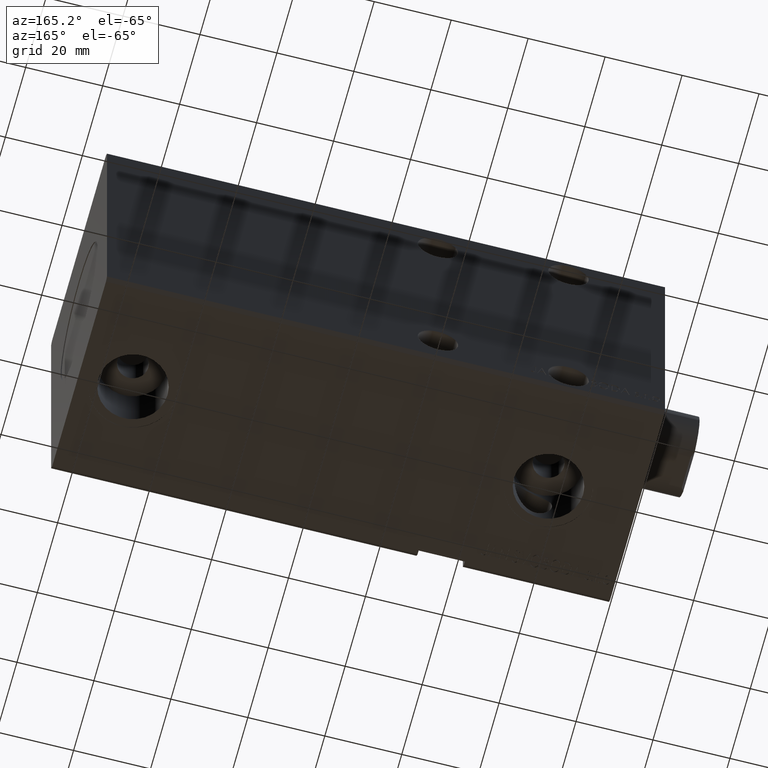
[diagram: clean part render]
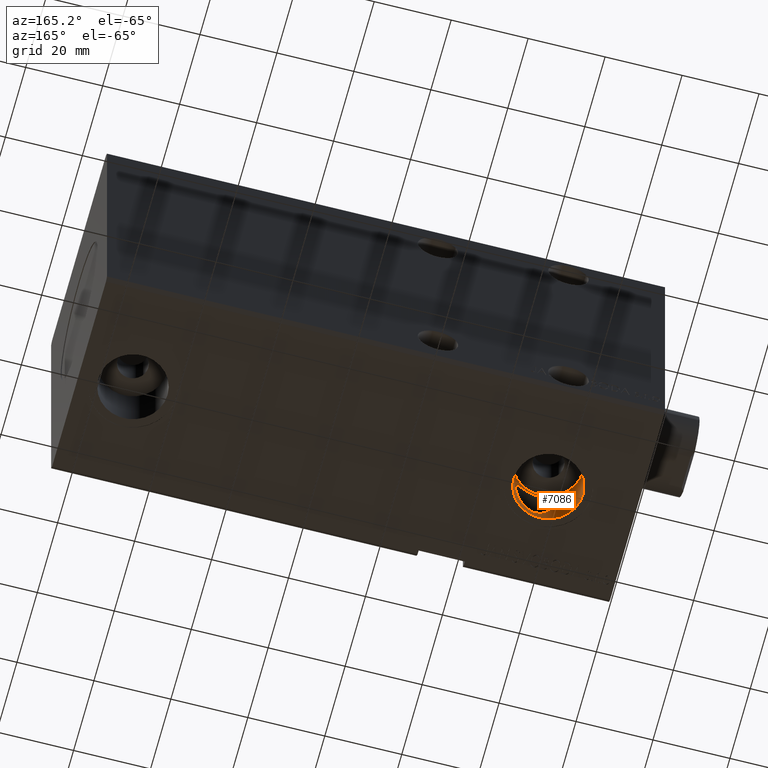
[diagram: same view with one face highlighted and labeled with its STEP entity id]
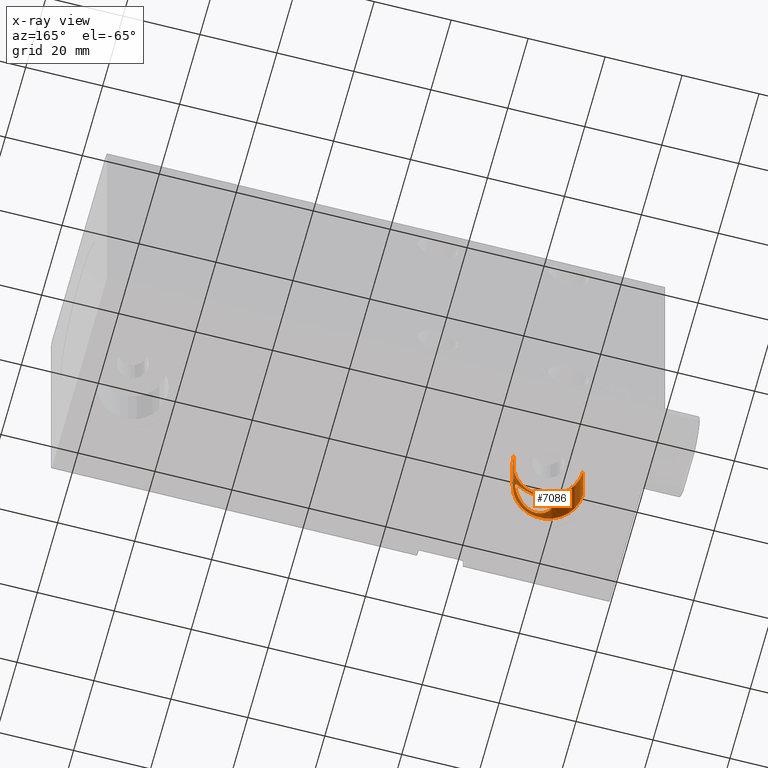
[diagram: x-ray of the same camera — body ghosted, the highlighted face saturated]
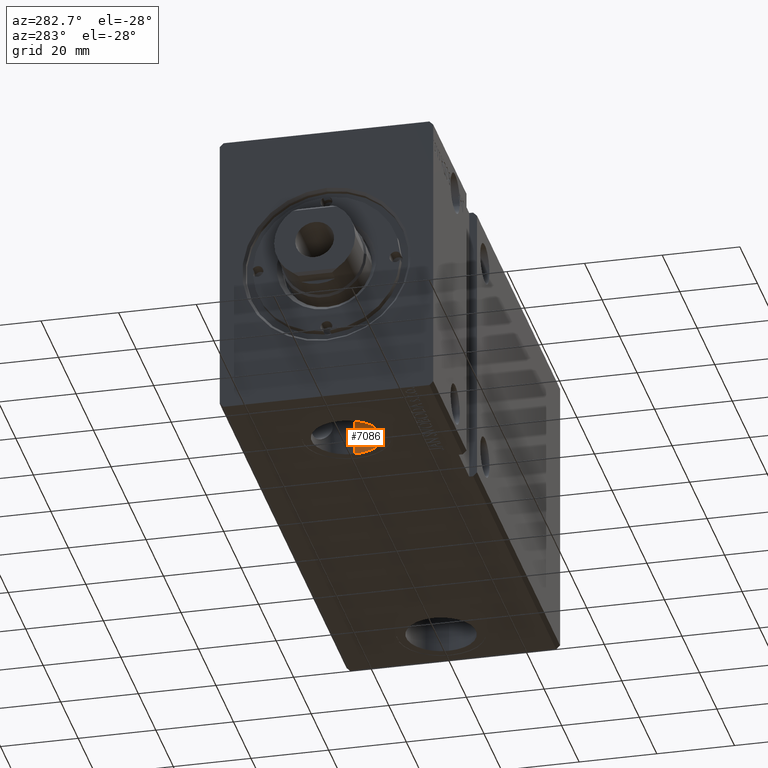
[diagram: same view with one face highlighted and labeled with its STEP entity id]
A machine part, auxiliary view. The second image highlights one B-rep face of the part: STEP entity #7086.
The next image is the same camera in x-ray: the body ghosted, the highlighted face saturated — about 0% of this face is hidden behind the body in this view.
A second angle (auxiliary view) of the same face is appended — the face is thin or edge-on in the first view.
In plain terms, the highlighted cylindrical surface (edge-blend (fillet) strip) has radius 9 mm, axis along (-0, -0, -1).
Its self-contained STEP definition (entity closure, byte-faithful):
#9 = CARTESIAN_POINT ( 'NONE',  ( 25.09203633362806229, -8.753478393117793743, -24.74999999999998934 ) ) ;
#1003 = CARTESIAN_POINT ( 'NONE',  ( 20.91827991304104373, -8.758132434806764621, -33.20291473209898214 ) ) ;
#1205 = CARTESIAN_POINT ( 'NONE',  ( 20.53884023444499718, -8.659164790814179113, -32.63577516527342226 ) ) ;
#1264 = CARTESIAN_POINT ( 'NONE',  ( 30.33243016848782148, -5.218874147594523727, -30.36931044886109277 ) ) ;
#1406 = CARTESIAN_POINT ( 'NONE',  ( 19.90982819484606381, -8.452936693195294282, -30.85860526111925495 ) ) ;
#1587 = VERTEX_POINT ( 'NONE', #31981 ) ;
#1605 = CARTESIAN_POINT ( 'NONE',  ( 20.11164270990531122, -8.525048521224713127, -31.69579571519651040 ) ) ;
#1662 = CARTESIAN_POINT ( 'NONE',  ( 25.46287841426381249, -8.664849042374413557, -35.24999999999999289 ) ) ;
#1809 = CARTESIAN_POINT ( 'NONE',  ( 19.85057494699763936, -8.430981594985491157, -29.65451613186094093 ) ) ;
#1871 = DIRECTION ( 'NONE',  ( -1.000000000000000000, 0.000000000000000000, 0.000000000000000000 ) ) ;
#2059 = CARTESIAN_POINT ( 'NONE',  ( 26.50978252346545005, -8.295612088899535053, -35.06721286640927815 ) ) ;
#3061 = CARTESIAN_POINT ( 'NONE',  ( 28.55568475119512328, -7.086906306276699929, -26.04145897877001659 ) ) ;
#3089 = EDGE_CURVE ( 'NONE', #21370, #16569, #28778, .T. ) ;
#3657 = CARTESIAN_POINT ( 'NONE',  ( 24.24614678946787194, -8.914927550530356015, -24.81574746635270401 ) ) ;
#3736 = VECTOR ( 'NONE', #36236, 1000.000000000000000 ) ;
#4080 = DIRECTION ( 'NONE',  ( -1.000000000000000000, 0.000000000000000000, 0.000000000000000000 ) ) ;
#4458 = CARTESIAN_POINT ( 'NONE',  ( 22.31574544340632116, -8.975089022710402986, -34.45915055828731255 ) ) ;
#4518 = CARTESIAN_POINT ( 'NONE',  ( 25.81995309604017663, -8.554742417376051122, -35.21121748531970752 ) ) ;
#4664 = CARTESIAN_POINT ( 'NONE',  ( 22.92576634363160792, -9.001124273122334429, -34.78538622542409797 ) ) ;
#4868 = CARTESIAN_POINT ( 'NONE',  ( 19.91032013521866517, -8.453117132441940740, -29.13839739757945324 ) ) ;
#4912 = LINE ( 'NONE', #33380, #3736 ) ;
#4952 = VERTEX_POINT ( 'NONE', #19709 ) ;
#5256 = EDGE_CURVE ( 'NONE', #16569, #21370, #23807, .T. ) ;
#5918 = CARTESIAN_POINT ( 'NONE',  ( 29.96412916232691259, -5.701957281101526220, -28.03680199240011817 ) ) ;
#6384 = CARTESIAN_POINT ( 'NONE',  ( 32.00000000000000000, -2.430933490207333949E-15, -37.39999999999999147 ) ) ;
#7086 = ADVANCED_FACE ( 'NONE', ( #7786, #20223 ), #32612, .F. ) ;
#7632 = ORIENTED_EDGE ( 'NONE', *, *, #28687, .T. ) ;
#7711 = CARTESIAN_POINT ( 'NONE',  ( 23.40713737881099732, -8.996512347487444217, -34.98439600114279102 ) ) ;
#7786 = FACE_BOUND ( 'NONE', #22944, .T. ) ;
#7968 = CARTESIAN_POINT ( 'NONE',  ( 30.29238617909859954, -5.274683247273929787, -30.74463362587819049 ) ) ;
#8113 = CARTESIAN_POINT ( 'NONE',  ( 21.50054843924515069, -8.875073064647663657, -26.16681733862788661 ) ) ;
#10368 = CARTESIAN_POINT ( 'NONE',  ( 21.13581351182155288, -8.808286796013796049, -26.53170078741924343 ) ) ;
#10534 = CIRCLE ( 'NONE', #31978, 9.000000000000000000 ) ;
#10566 = CARTESIAN_POINT ( 'NONE',  ( 19.88413282917837321, -8.443441056820931934, -30.68562562880411448 ) ) ;
#10591 = DIRECTION ( 'NONE',  ( 0.000000000000000000, 0.000000000000000000, -1.000000000000000000 ) ) ;
#10972 = CARTESIAN_POINT ( 'NONE',  ( 22.31964126081586741, -8.975395274133536105, -25.53840020970784863 ) ) ;
#11032 = CARTESIAN_POINT ( 'NONE',  ( 26.84555129372473559, -8.144698255479593030, -34.96018541540880165 ) ) ;
#11173 = CARTESIAN_POINT ( 'NONE',  ( 22.77333566898121475, -8.998447055166504782, -25.28659672844136708 ) ) ;
#12232 = CARTESIAN_POINT ( 'NONE',  ( 28.30571175945679130, -7.277224228816997709, -25.83544435048857224 ) ) ;
#12432 = CARTESIAN_POINT ( 'NONE',  ( 29.01497616311369043, -6.701487581558338569, -26.49608069848767045 ) ) ;
#13385 = CARTESIAN_POINT ( 'NONE',  ( 25.09203633362806585, -8.753478393117795520, -35.25000000000000000 ) ) ;
#13431 = CARTESIAN_POINT ( 'NONE',  ( 23.41185068282589299, -8.996263611929594006, -25.01409721280269594 ) ) ;
#13634 = CARTESIAN_POINT ( 'NONE',  ( 21.88878565576105473, -8.935709917871195174, -34.17360088282929809 ) ) ;
#13690 = CARTESIAN_POINT ( 'NONE',  ( 30.34176391626523284, -5.205622230926300276, -29.80476940065252123 ) ) ;
#14031 = CARTESIAN_POINT ( 'NONE',  ( 20.91954720797172484, -8.758446730801182412, -26.79533775823425401 ) ) ;
#14091 = CARTESIAN_POINT ( 'NONE',  ( 27.76301929153480330, -7.643474206694381046, -34.53184558389260417 ) ) ;
#14235 = CARTESIAN_POINT ( 'NONE',  ( 19.83362251415856292, -8.424600219591543038, -29.99805461567138920 ) ) ;
#14297 = DIRECTION ( 'NONE',  ( -0.000000000000000000, -0.000000000000000000, -1.000000000000000000 ) ) ;
#14486 = CARTESIAN_POINT ( 'NONE',  ( 27.47108588853984656, -7.818808438808311223, -34.69237437613315223 ) ) ;
#14684 = CARTESIAN_POINT ( 'NONE',  ( 25.81198762355541376, -8.557552568808603155, -24.78739261100547964 ) ) ;
#14881 = CARTESIAN_POINT ( 'NONE',  ( 26.84079636178658035, -8.146868878203363806, -25.03825065064038569 ) ) ;
#15079 = CARTESIAN_POINT ( 'NONE',  ( 27.75936755140742207, -7.645717118853497141, -25.46606377690282486 ) ) ;
#15374 = VECTOR ( 'NONE', #14297, 1000.000000000000000 ) ;
#15384 = AXIS2_PLACEMENT_3D ( 'NONE', #29556, #38924, #16346 ) ;
#15484 = CARTESIAN_POINT ( 'NONE',  ( 29.22546969590791122, -6.504871118022788501, -26.74675146681146032 ) ) ;
#16195 = ORIENTED_EDGE ( 'NONE', *, *, #30700, .F. ) ;
#16346 = DIRECTION ( 'NONE',  ( -1.000000000000000000, 0.000000000000000000, 0.000000000000000000 ) ) ;
#16569 = VERTEX_POINT ( 'NONE', #13385 ) ;
#16884 = CARTESIAN_POINT ( 'NONE',  ( 25.09203633362806585, -8.753478393117795520, -35.25000000000000000 ) ) ;
#16909 = CARTESIAN_POINT ( 'NONE',  ( 23.00000000000000000, -3.533115609439951465E-15, -37.39999999999999147 ) ) ;
#16941 = CARTESIAN_POINT ( 'NONE',  ( 30.26032921081947080, -5.319002864725183244, -29.05975803743857000 ) ) ;
#17237 = EDGE_CURVE ( 'NONE', #1587, #35131, #10534, .T. ) ;
#17284 = CARTESIAN_POINT ( 'NONE',  ( 20.53896281337766894, -8.659212950505500217, -27.36389546741519752 ) ) ;
#17550 = DIRECTION ( 'NONE',  ( 0.000000000000000000, 0.000000000000000000, -1.000000000000000000 ) ) ;
#18334 = CARTESIAN_POINT ( 'NONE',  ( 29.59637909740989770, -6.128425899038712821, -27.28342243890078933 ) ) ;
#19709 = CARTESIAN_POINT ( 'NONE',  ( 14.00000000000000000, -3.533115609439951465E-15, -37.39999999999999147 ) ) ;
#20150 = CARTESIAN_POINT ( 'NONE',  ( 20.01158755616825857, -8.489675680713254735, -31.36801936094759569 ) ) ;
#20223 = FACE_OUTER_BOUND ( 'NONE', #33229, .T. ) ;
#20550 = CARTESIAN_POINT ( 'NONE',  ( 19.88457419945592619, -8.443604141642794048, -29.31107715102094247 ) ) ;
#21370 = VERTEX_POINT ( 'NONE', #25550 ) ;
#21398 = CARTESIAN_POINT ( 'NONE',  ( 29.75817534815130472, -5.947496386207846264, -27.56989990100082366 ) ) ;
#21596 = CARTESIAN_POINT ( 'NONE',  ( 30.13631950722670894, -5.484596953261258179, -28.53417301700054765 ) ) ;
#22792 = CARTESIAN_POINT ( 'NONE',  ( 22.76738609301051497, -8.998283481120575189, -34.71044669971033869 ) ) ;
#22944 = EDGE_LOOP ( 'NONE', ( #35744, #37782 ) ) ;
#23188 = CARTESIAN_POINT ( 'NONE',  ( 22.46293648994419812, -8.985253342143384003, -34.54754228830879725 ) ) ;
#23249 = CARTESIAN_POINT ( 'NONE',  ( 25.09203633362806585, -8.753478393117795520, -35.25000000000000000 ) ) ;
#23394 = CARTESIAN_POINT ( 'NONE',  ( 20.37448565583469318, -8.609630337770669328, -32.32911128058502470 ) ) ;
#23452 = CARTESIAN_POINT ( 'NONE',  ( 29.22854587793465342, -6.502008468664729257, -33.24963602789108563 ) ) ;
#23461 = EDGE_CURVE ( 'NONE', #1587, #34962, #23846, .T. ) ;
#23590 = CARTESIAN_POINT ( 'NONE',  ( 22.46749615007263756, -8.985536476660895389, -25.44979868604956863 ) ) ;
#23807 = B_SPLINE_CURVE_WITH_KNOTS ( 'NONE', 3,
 ( #23249, #1662, #4518, #2059, #11032, #14486, #14091, #26498, #35654, #26886, #23452, #29150, #23844, #33196, #36246, #35850, #7968, #1264, #26300, #13690, #26095, #38505, #16941, #33991, #21596, #33789, #5918, #21398, #18334, #15484, #12432, #3061, #12232, #15079, #27487, #14881, #24044, #14684, #27283, #39907 ),
 .UNSPECIFIED., .F., .F.,
 ( 4, 2, 2, 2, 2, 2, 2, 2, 2, 2, 2, 2, 2, 2, 2, 2, 2, 2, 2, 4 ),
 ( 0.000000000000000000, 0.001124982122024073420, 0.002249964244048146839, 0.003374946366072218307, 0.004499928488096290209, 0.005624910610120360810, 0.006749892732144433145, 0.007874874854168503746, 0.008437365915180534276, 0.008999856976192564806, 0.009562348037204595336, 0.01012483909821662587, 0.01068733015922865640, 0.01124982122024068693, 0.01237480334226474105, 0.01349978546428879343, 0.01462476758631284755, 0.01574974970833689994, 0.01687473183036095406, 0.01799971395238500818 ),
 .UNSPECIFIED. ) ;
#23844 = CARTESIAN_POINT ( 'NONE',  ( 29.76373627743824812, -5.941128023469640418, -32.41931364375749780 ) ) ;
#23846 = LINE ( 'NONE', #39505, #15374 ) ;
#24044 = CARTESIAN_POINT ( 'NONE',  ( 26.51008718583014456, -8.295677688460560972, -24.93258079174049513 ) ) ;
#24836 = CARTESIAN_POINT ( 'NONE',  ( 24.75737702535593954, -8.828439908652118362, -24.75790389064604469 ) ) ;
#25550 = CARTESIAN_POINT ( 'NONE',  ( 25.09203633362806229, -8.753478393117793743, -24.74999999999998934 ) ) ;
#26044 = CARTESIAN_POINT ( 'NONE',  ( 20.11270367705738948, -8.525401507591297445, -28.30134447258186370 ) ) ;
#26095 = CARTESIAN_POINT ( 'NONE',  ( 30.33145397744120331, -5.220249605919116576, -29.61742763060336969 ) ) ;
#26242 = CARTESIAN_POINT ( 'NONE',  ( 24.75235320269629469, -8.834660915072548804, -35.24999999999998579 ) ) ;
#26300 = CARTESIAN_POINT ( 'NONE',  ( 30.34229812652236902, -5.204868724046218809, -30.18029360747793177 ) ) ;
#26311 = CARTESIAN_POINT ( 'NONE',  ( 14.00000000000000000, -3.533115609439951465E-15, -23.79999999999998650 ) ) ;
#26498 = CARTESIAN_POINT ( 'NONE',  ( 28.31036663439096657, -7.273861211783062330, -34.16102444511763991 ) ) ;
#26638 = CARTESIAN_POINT ( 'NONE',  ( 21.13437635199891318, -8.808003175221950087, -33.46676695001080049 ) ) ;
#26886 = CARTESIAN_POINT ( 'NONE',  ( 29.02092208296913611, -6.696124691263869444, -33.49723139814425110 ) ) ;
#27283 = CARTESIAN_POINT ( 'NONE',  ( 25.45569862642553716, -8.666564974755907258, -24.74999999999999289 ) ) ;
#27487 = CARTESIAN_POINT ( 'NONE',  ( 27.46359196531747315, -7.823013228833568533, -25.30395462886507474 ) ) ;
#28276 = CARTESIAN_POINT ( 'NONE',  ( 24.41796465910936931, -8.889268893190665821, -24.79066262851707236 ) ) ;
#28687 = EDGE_CURVE ( 'NONE', #34962, #4952, #34889, .T. ) ;
#28778 = B_SPLINE_CURVE_WITH_KNOTS ( 'NONE', 3,
 ( #9, #31538, #24836, #28276, #3657, #37238, #13431, #32341, #11173, #23590, #10972, #35996, #29692, #29088, #8113, #10368, #14031, #17284, #39056, #26044, #32743, #4868, #20550, #1809, #14235, #32140, #10566, #1406, #20150, #1605, #23394, #1205, #1003, #26638, #35594, #13634, #4458, #23188, #22792, #4664, #7711, #32945, #35393, #26242, #16884 ),
 .UNSPECIFIED., .F., .F.,
 ( 4, 2, 2, 2, 2, 2, 2, 2, 2, 2, 2, 2, 1, 2, 2, 2, 2, 2, 2, 2, 2, 2, 4 ),
 ( 0.01799971395238500818, 0.01851494330391418794, 0.01903017265544336423, 0.02006063135850172374, 0.02057586071003090003, 0.02109109006156007632, 0.02160631941308925261, 0.02212154876461842890, 0.02315200746767678147, 0.02418246617073513405, 0.02521292487379349009, 0.02572815422532266985, 0.02624338357685185308, 0.02675861292838103284, 0.02727384227991021259, 0.02830430098296858599, 0.02933475968602695938, 0.03036521838908532583, 0.03139567709214369923, 0.03191090644367288592, 0.03242613579520206568, 0.03345659449826043214, 0.03448705320131879165 ),
 .UNSPECIFIED. ) ;
#29017 = AXIS2_PLACEMENT_3D ( 'NONE', #16909, #10591, #4080 ) ;
#29088 = CARTESIAN_POINT ( 'NONE',  ( 21.62935564280670064, -8.896033270444579699, -26.05006266297171535 ) ) ;
#29150 = CARTESIAN_POINT ( 'NONE',  ( 29.60204158245693762, -6.122413316955500839, -32.70752621029663487 ) ) ;
#29164 = ORIENTED_EDGE ( 'NONE', *, *, #17237, .F. ) ;
#29556 = CARTESIAN_POINT ( 'NONE',  ( 23.00000000000000000, -3.533115609439951465E-15, -23.79999999999998650 ) ) ;
#29692 = CARTESIAN_POINT ( 'NONE',  ( 21.89568027897454172, -8.933003518219218009, -25.83161056222946073 ) ) ;
#30700 = EDGE_CURVE ( 'NONE', #35131, #4952, #4912, .T. ) ;
#31538 = CARTESIAN_POINT ( 'NONE',  ( 24.92548303146842770, -8.793283776070204283, -24.75000000000000000 ) ) ;
#31978 = AXIS2_PLACEMENT_3D ( 'NONE', #39716, #17550, #1871 ) ;
#31981 = CARTESIAN_POINT ( 'NONE',  ( 32.00000000000000000, -2.430933490207333949E-15, -23.79999999999998650 ) ) ;
#32140 = CARTESIAN_POINT ( 'NONE',  ( 19.85032660596811738, -8.430888601869972021, -30.34179020683364314 ) ) ;
#32341 = CARTESIAN_POINT ( 'NONE',  ( 22.93192267474806911, -9.001164395113265826, -25.21185353327031820 ) ) ;
#32612 = CYLINDRICAL_SURFACE ( 'NONE', #15384, 9.000000000000000000 ) ;
#32743 = CARTESIAN_POINT ( 'NONE',  ( 20.01248818278899932, -8.489995101794782784, -28.62855630639378290 ) ) ;
#32945 = CARTESIAN_POINT ( 'NONE',  ( 23.73575427346593258, -8.976246143453305848, -35.08331919646433050 ) ) ;
#33196 = CARTESIAN_POINT ( 'NONE',  ( 30.03652085716494113, -5.615381095586774229, -31.79720106509305921 ) ) ;
#33229 = EDGE_LOOP ( 'NONE', ( #29164, #37088, #7632, #16195 ) ) ;
#33380 = CARTESIAN_POINT ( 'NONE',  ( 14.00000000000000000, -3.533115609439951465E-15, -23.79999999999998650 ) ) ;
#33789 = CARTESIAN_POINT ( 'NONE',  ( 30.02689156182959351, -5.624113692595044789, -28.19982074330592425 ) ) ;
#33991 = CARTESIAN_POINT ( 'NONE',  ( 30.18324122037221713, -5.422657770353822571, -28.70580565069179002 ) ) ;
#34889 = CIRCLE ( 'NONE', #29017, 9.000000000000000000 ) ;
#34962 = VERTEX_POINT ( 'NONE', #6384 ) ;
#35131 = VERTEX_POINT ( 'NONE', #26311 ) ;
#35393 = CARTESIAN_POINT ( 'NONE',  ( 24.40719667732488674, -8.895736433264504583, -35.21638090298387169 ) ) ;
#35594 = CARTESIAN_POINT ( 'NONE',  ( 21.62212855883694118, -8.897355889382421168, -33.95490652864518921 ) ) ;
#35654 = CARTESIAN_POINT ( 'NONE',  ( 28.56272331956732558, -7.081362713495249039, -33.95235404906659227 ) ) ;
#35744 = ORIENTED_EDGE ( 'NONE', *, *, #5256, .T. ) ;
#35850 = CARTESIAN_POINT ( 'NONE',  ( 30.26278949629764625, -5.315635615465652108, -30.92667508228484863 ) ) ;
#35996 = CARTESIAN_POINT ( 'NONE',  ( 22.03373301574867682, -8.949130486034311716, -25.72930591772997744 ) ) ;
#36236 = DIRECTION ( 'NONE',  ( -0.000000000000000000, -0.000000000000000000, -1.000000000000000000 ) ) ;
#36246 = CARTESIAN_POINT ( 'NONE',  ( 30.14833187884591936, -5.469709718589207625, -31.45877869087512124 ) ) ;
#37088 = ORIENTED_EDGE ( 'NONE', *, *, #23461, .T. ) ;
#37238 = CARTESIAN_POINT ( 'NONE',  ( 23.74056050322555578, -8.975902759582846002, -24.91531447442126534 ) ) ;
#37782 = ORIENTED_EDGE ( 'NONE', *, *, #3089, .T. ) ;
#38505 = CARTESIAN_POINT ( 'NONE',  ( 30.29065819105012736, -5.277075564430607990, -29.24356781688004503 ) ) ;
#38924 = DIRECTION ( 'NONE',  ( -0.000000000000000000, -0.000000000000000000, -1.000000000000000000 ) ) ;
#39056 = CARTESIAN_POINT ( 'NONE',  ( 20.37479934545333649, -8.609719649645143136, -27.67043791604183411 ) ) ;
#39505 = CARTESIAN_POINT ( 'NONE',  ( 32.00000000000000000, -2.430933490207333949E-15, -23.79999999999998650 ) ) ;
#39716 = CARTESIAN_POINT ( 'NONE',  ( 23.00000000000000000, -3.533115609439951465E-15, -23.79999999999998650 ) ) ;
#39907 = CARTESIAN_POINT ( 'NONE',  ( 25.09203633362806229, -8.753478393117793743, -24.74999999999998934 ) ) ;